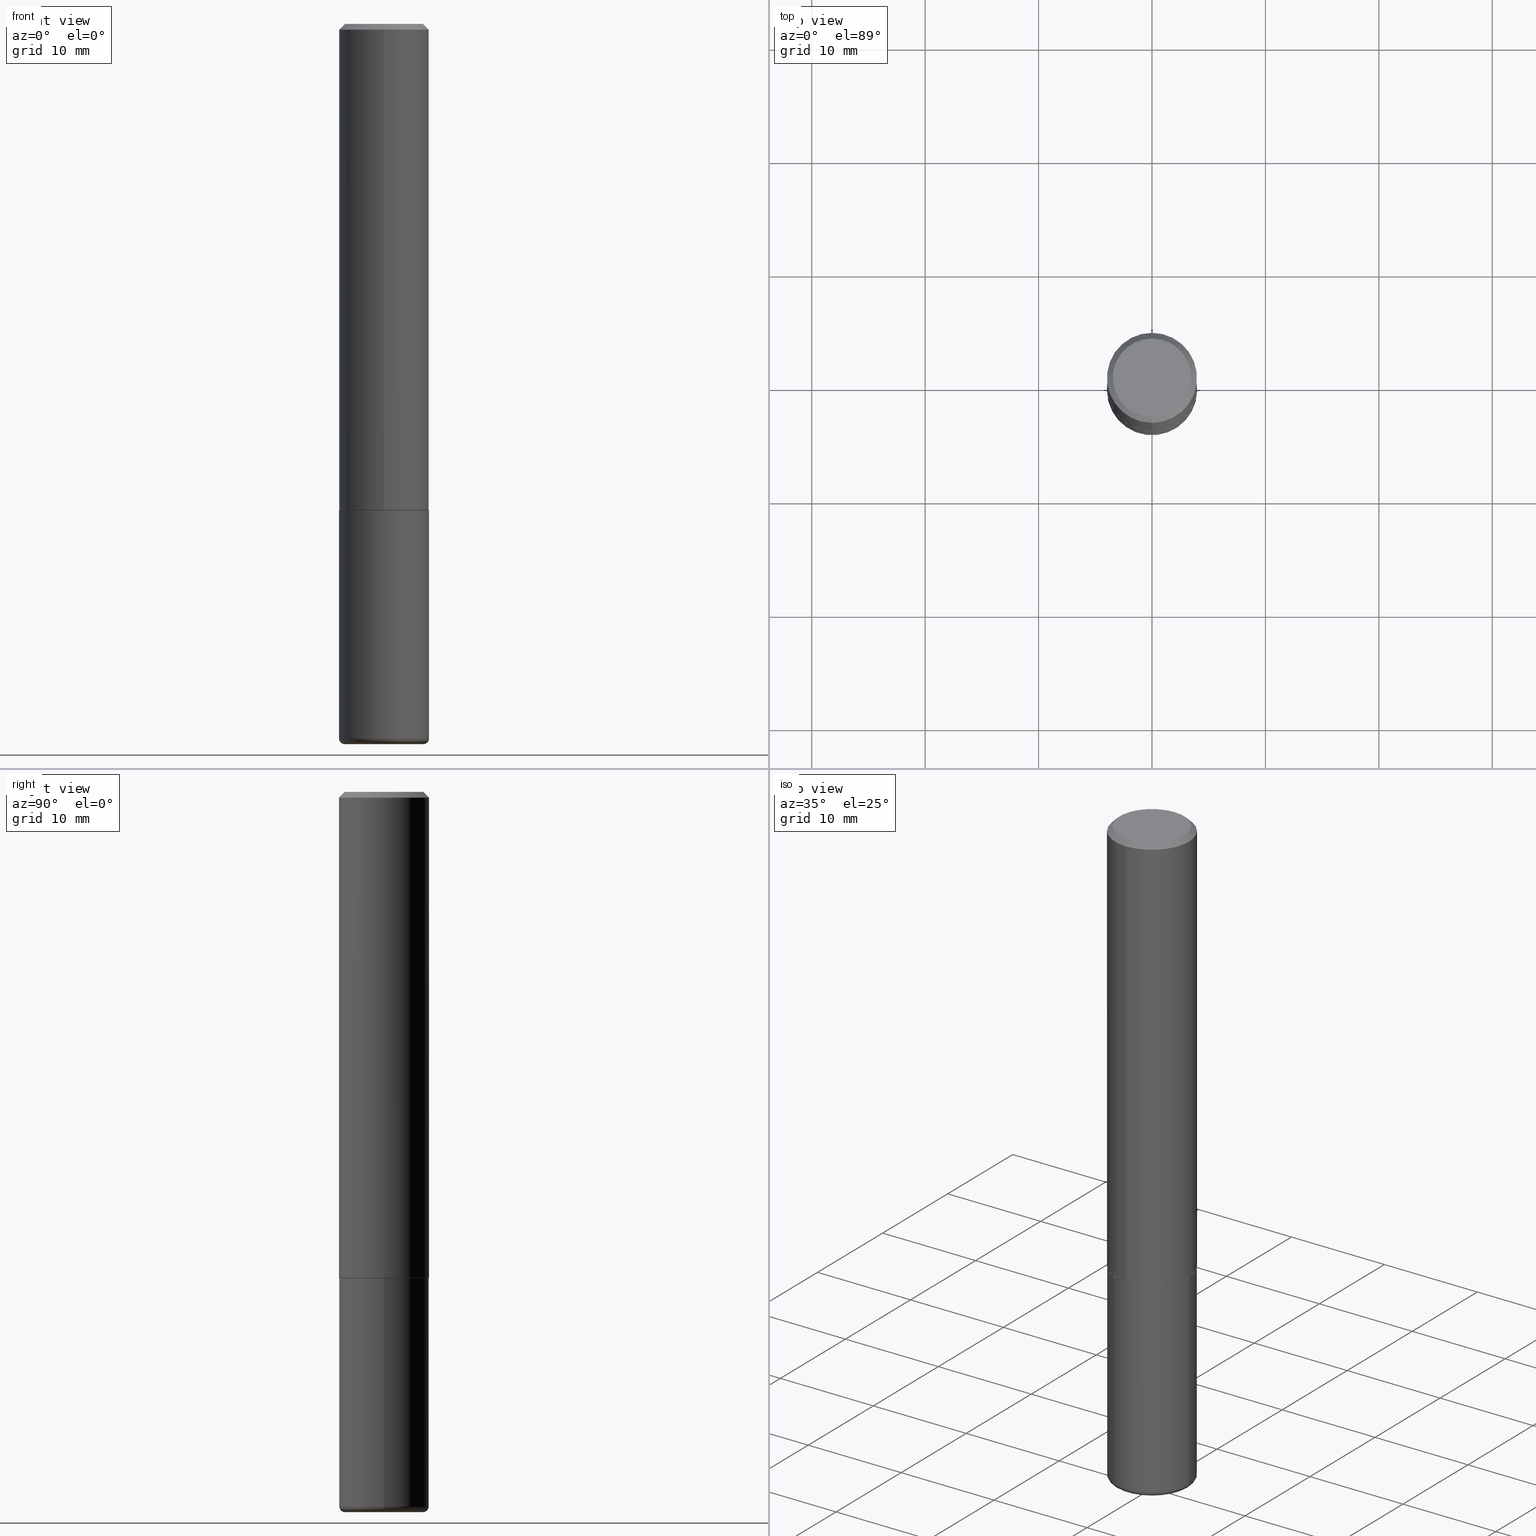
[diagram: canonical four-view strip — front | top / right | iso, engineering-drawing reading convention]
A machine part, canonical four-view strip (front | top / right | iso — engineering-drawing reading convention). The complete STEP part file that produces these views, byte-faithful:
ISO-10303-21;
HEADER;
FILE_DESCRIPTION (( 'STEP AP203' ),
    '1' );
FILE_NAME ('38233.STEP',
    '2024-03-02T19:05:54',
    ( '' ),
    ( '' ),
    'SwSTEP 2.0',
    'SolidWorks 2023',
    '' );
FILE_SCHEMA (( 'CONFIG_CONTROL_DESIGN' ));
ENDSEC;

DATA;
#1 = COORDINATED_UNIVERSAL_TIME_OFFSET ( 5, 0, .BEHIND. ) ;
#2 = CYLINDRICAL_SURFACE ( 'NONE', #387, 0.1562500000000000000 ) ;
#3 = AXIS2_PLACEMENT_3D ( 'NONE', #222, #48, #316 ) ;
#4 = CC_DESIGN_APPROVAL ( #73, ( #322 ) ) ;
#5 = DIRECTION ( 'NONE',  ( -2.445045230849958565E-29, 3.492087922831531704E-15, 1.000000000000000000 ) ) ;
#6 = CARTESIAN_POINT ( 'NONE',  ( 0.1362500000000000100, -9.610302385165756588E-15, -2.480000000000000426 ) ) ;
#7 = DIRECTION ( 'NONE',  ( -2.445045230849958565E-29, 3.492087922831531704E-15, 1.000000000000000000 ) ) ;
#8 = CARTESIAN_POINT ( 'NONE',  ( 6.113672015462842613E-29, -8.728703347107866520E-15, -2.500000000000000444 ) ) ;
#9 = EDGE_CURVE ( 'NONE', #134, #271, #179, .T. ) ;
#10 = ORIENTED_EDGE ( 'NONE', *, *, #324, .T. ) ;
#11 = FACE_OUTER_BOUND ( 'NONE', #309, .T. ) ;
#12 = ORIENTED_EDGE ( 'NONE', *, *, #202, .F. ) ;
#13 = VERTEX_POINT ( 'NONE', #372 ) ;
#14 = DIRECTION ( 'NONE',  ( 0.000000000000000000, 0.000000000000000000, 1.000000000000000000 ) ) ;
#15 = AXIS2_PLACEMENT_3D ( 'NONE', #317, #149, #204 ) ;
#16 = EDGE_LOOP ( 'NONE', ( #237, #170, #311, #230 ) ) ;
#17 = ORIENTED_EDGE ( 'NONE', *, *, #183, .T. ) ;
#18 = EDGE_LOOP ( 'NONE', ( #109, #334, #336, #207 ) ) ;
#19 = DATE_AND_TIME ( #210, #45 ) ;
#20 = EDGE_CURVE ( 'NONE', #134, #35, #273, .T. ) ;
#21 = PLANE ( 'NONE',  #390 ) ;
#22 = CIRCLE ( 'NONE', #358, 0.1562500000000000000 ) ;
#23 = PRODUCT_DEFINITION ( 'UNKNOWN', '', #65, #181 ) ;
#24 = DIRECTION ( 'NONE',  ( 2.438088387897960049E-29, -3.491481338843145188E-15, -1.000000000000000000 ) ) ;
#25 = DIRECTION ( 'NONE',  ( -2.445045230849958565E-29, 3.492087922831532098E-15, 1.000000000000000000 ) ) ;
#26 = AXIS2_PLACEMENT_3D ( 'NONE', #409, #118, #378 ) ;
#27 = AXIS2_PLACEMENT_3D ( 'NONE', #357, #14, #66 ) ;
#28 = DIRECTION ( 'NONE',  ( -6.982962677686265133E-15, -1.000000000000000000, 3.496765431890256920E-15 ) ) ;
#29 = EDGE_CURVE ( 'NONE', #376, #407, #41, .T. ) ;
#30 = AXIS2_PLACEMENT_3D ( 'NONE', #57, #294, #188 ) ;
#31 = PERSON_AND_ORGANIZATION ( #148, #369 ) ;
#32 = DIRECTION ( 'NONE',  ( -6.982962677686265922E-15, -1.000000000000000000, 3.519288880726909138E-15 ) ) ;
#33 = FACE_OUTER_BOUND ( 'NONE', #92, .T. ) ;
#34 = ORIENTED_EDGE ( 'NONE', *, *, #417, .T. ) ;
#35 = VERTEX_POINT ( 'NONE', #400 ) ;
#36 = CIRCLE ( 'NONE', #199, 0.1362500000000000933 ) ;
#37 = CARTESIAN_POINT ( 'NONE',  ( 4.127951344840510809E-29, -5.893620499967230340E-15, -1.688000000000000167 ) ) ;
#38 = DIRECTION ( 'NONE',  ( -6.982962677686265922E-15, -1.000000000000000000, 3.519288880726909138E-15 ) ) ;
#39 = ORIENTED_EDGE ( 'NONE', *, *, #293, .F. ) ;
#40 = ORIENTED_EDGE ( 'NONE', *, *, #346, .T. ) ;
#41 = LINE ( 'NONE', #142, #43 ) ;
#42 = ORIENTED_EDGE ( 'NONE', *, *, #217, .T. ) ;
#43 = VECTOR ( 'NONE', #277, 39.37007874015748143 ) ;
#44 = DIRECTION ( 'NONE',  ( 1.000000000000000000, -6.982962677686269077E-15, 0.000000000000000000 ) ) ;
#45 = LOCAL_TIME ( 14, 5, 54.00000000000000000, #159 ) ;
#46 = PERSON_AND_ORGANIZATION_ROLE ( 'classification_officer' ) ;
#47 = EDGE_CURVE ( 'NONE', #209, #268, #289, .T. ) ;
#48 = DIRECTION ( 'NONE',  ( -2.445468806185136597E-29, 3.491481338843145583E-15, 1.000000000000000000 ) ) ;
#49 = DIRECTION ( 'NONE',  ( -6.982962677686265922E-15, -1.000000000000000000, 3.496765431890251792E-15 ) ) ;
#50 = DIRECTION ( 'NONE',  ( -2.445045230849958565E-29, 3.492087922831531704E-15, 1.000000000000000000 ) ) ;
#51 = AXIS2_PLACEMENT_3D ( 'NONE', #276, #359, #302 ) ;
#52 = EDGE_CURVE ( 'NONE', #72, #53, #151, .T. ) ;
#53 = VERTEX_POINT ( 'NONE', #403 ) ;
#54 = COORDINATED_UNIVERSAL_TIME_OFFSET ( 5, 0, .BEHIND. ) ;
#55 = PRODUCT_RELATED_PRODUCT_CATEGORY ( 'detail', '', ( #93 ) ) ;
#56 = ORIENTED_EDGE ( 'NONE', *, *, #194, .F. ) ;
#57 = CARTESIAN_POINT ( 'NONE',  ( 6.064762639339139522E-29, -8.658873720331001644E-15, -2.480000000000000426 ) ) ;
#58 = AXIS2_PLACEMENT_3D ( 'NONE', #415, #5, #32 ) ;
#59 = CC_DESIGN_APPROVAL ( #220, ( #23 ) ) ;
#60 = CARTESIAN_POINT ( 'NONE',  ( 1.103117597267596553E-15, 0.1552499999999940872, -1.688000000000000611 ) ) ;
#61 = FACE_OUTER_BOUND ( 'NONE', #244, .T. ) ;
#62 = ADVANCED_FACE ( 'NONE', ( #215 ), #144, .F. ) ;
#63 = ADVANCED_FACE ( 'NONE', ( #178 ), #241, .T. ) ;
#64 = DIRECTION ( 'NONE',  ( 1.000000000000000000, -6.982962677686262766E-15, 0.000000000000000000 ) ) ;
#65 = PRODUCT_DEFINITION_FORMATION_WITH_SPECIFIED_SOURCE ( 'ANY', '', #93, .NOT_KNOWN. ) ;
#66 = DIRECTION ( 'NONE',  ( 1.000000000000000000, 0.000000000000000000, 0.000000000000000000 ) ) ;
#67 = MANIFOLD_SOLID_BREP ( 'Body-Move/Copy2[1]', #198 ) ;
#68 = DIRECTION ( 'NONE',  ( -6.982962677686265922E-15, -1.000000000000000000, 3.519288880726909138E-15 ) ) ;
#69 = ORIENTED_EDGE ( 'NONE', *, *, #381, .T. ) ;
#70 = ADVANCED_FACE ( 'NONE', ( #406 ), #274, .T. ) ;
#71 = CARTESIAN_POINT ( 'NONE',  ( 4.127236349674729842E-29, -5.894644413739625756E-15, -1.688000000000000167 ) ) ;
#72 = VERTEX_POINT ( 'NONE', #283 ) ;
#73 = APPROVAL ( #218, 'UNSPECIFIED' ) ;
#74 = DIRECTION ( 'NONE',  ( -2.445045230849958565E-29, 3.492087922831531704E-15, 1.000000000000000000 ) ) ;
#75 = ORIENTED_EDGE ( 'NONE', *, *, #194, .T. ) ;
#76 = CARTESIAN_POINT ( 'NONE',  ( 4.890090461699924977E-31, -6.984175845663074797E-17, -0.02000000000000003511 ) ) ;
#77 = ORIENTED_EDGE ( 'NONE', *, *, #412, .T. ) ;
#78 = DATE_TIME_ROLE ( 'creation_date' ) ;
#79 = EDGE_LOOP ( 'NONE', ( #39, #150 ) ) ;
#80 = MANIFOLD_SOLID_BREP ( 'Body-Move/Copy2[2]', #386 ) ;
#81 = ORIENTED_EDGE ( 'NONE', *, *, #384, .F. ) ;
#82 = PERSON_AND_ORGANIZATION ( #148, #369 ) ;
#83 = CIRCLE ( 'NONE', #321, 0.1362500000000000933 ) ;
#84 = DIRECTION ( 'NONE',  ( 2.445045230849958565E-29, -3.492087922831531704E-15, -1.000000000000000000 ) ) ;
#85 = MECHANICAL_CONTEXT ( 'NONE', #315, 'mechanical' ) ;
#86 = ADVANCED_FACE ( 'NONE', ( #184 ), #263, .T. ) ;
#87 = ORIENTED_EDGE ( 'NONE', *, *, #363, .F. ) ;
#88 = AXIS2_PLACEMENT_3D ( 'NONE', #243, #349, #49 ) ;
#89 = CARTESIAN_POINT ( 'NONE',  ( 1.021258291611616861E-15, 0.1362500000000000933, -5.269364822985837754E-16 ) ) ;
#90 = AXIS2_PLACEMENT_3D ( 'NONE', #231, #7, #38 ) ;
#91 = CARTESIAN_POINT ( 'NONE',  ( 1.106670310946397846E-15, 0.1552499999999940872, -1.688000000000000611 ) ) ;
#92 = EDGE_LOOP ( 'NONE', ( #264, #75, #40, #362 ) ) ;
#93 = PRODUCT ( '38233', '38233', '', ( #85 ) ) ;
#94 = DIRECTION ( 'NONE',  ( 2.438088387897960049E-29, -3.491481338843145188E-15, -1.000000000000000000 ) ) ;
#95 = AXIS2_PLACEMENT_3D ( 'NONE', #347, #50, #112 ) ;
#96 = CC_DESIGN_PERSON_AND_ORGANIZATION_ASSIGNMENT ( #275, #208, ( #93 ) ) ;
#97 = CARTESIAN_POINT ( 'NONE',  ( 6.064762639339139522E-29, -8.658873720331001644E-15, -2.480000000000000426 ) ) ;
#98 = APPLICATION_PROTOCOL_DEFINITION ( 'international standard', 'config_control_design', 1994, #166 ) ;
#99 = VECTOR ( 'NONE', #193, 39.37007874015748143 ) ;
#100 = CARTESIAN_POINT ( 'NONE',  ( -0.1362500000000000100, -7.690759242857866845E-15, -2.480000000000000426 ) ) ;
#101 = ORIENTED_EDGE ( 'NONE', *, *, #47, .T. ) ;
#102 = LINE ( 'NONE', #131, #125 ) ;
#103 = VERTEX_POINT ( 'NONE', #89 ) ;
#104 = ADVANCED_FACE ( 'NONE', ( #281 ), #21, .F. ) ;
#105 = CARTESIAN_POINT ( 'NONE',  ( 0.000000000000000000, 0.000000000000000000, 0.000000000000000000 ) ) ;
#106 = ORIENTED_EDGE ( 'NONE', *, *, #293, .T. ) ;
#107 = PERSON_AND_ORGANIZATION_ROLE ( 'creator' ) ;
#108 = DIRECTION ( 'NONE',  ( -6.982962677686265922E-15, -1.000000000000000000, 3.519288880726909138E-15 ) ) ;
#109 = ORIENTED_EDGE ( 'NONE', *, *, #393, .F. ) ;
#110 = APPROVAL_ROLE ( '' ) ;
#111 = CC_DESIGN_DATE_AND_TIME_ASSIGNMENT ( #254, #223, ( #322 ) ) ;
#112 = DIRECTION ( 'NONE',  ( -6.982962677686265922E-15, -1.000000000000000000, 3.492087922831532098E-15 ) ) ;
#113 = AXIS2_PLACEMENT_3D ( 'NONE', #157, #94, #320 ) ;
#114 = DIRECTION ( 'NONE',  ( 6.982962677686265133E-15, 1.000000000000000000, -3.496765431890256920E-15 ) ) ;
#115 = CALENDAR_DATE ( 2024, 2, 3 ) ;
#116 = CALENDAR_DATE ( 2024, 2, 3 ) ;
#117 = ORIENTED_EDGE ( 'NONE', *, *, #280, .F. ) ;
#118 = DIRECTION ( 'NONE',  ( -2.445045230849957724E-29, 3.492087922831532098E-15, 1.000000000000000000 ) ) ;
#119 = AXIS2_PLACEMENT_3D ( 'NONE', #260, #256, #28 ) ;
#120 = CC_DESIGN_APPROVAL ( #121, ( #65 ) ) ;
#121 = APPROVAL ( #401, 'UNSPECIFIED' ) ;
#122 = CARTESIAN_POINT ( 'NONE',  ( -0.1562500000000000000, 1.110223024625156540E-15, -7.685836078523291160E-30 ) ) ;
#123 = DIRECTION ( 'NONE',  ( -2.445045230849958565E-29, 3.492087922831531704E-15, 1.000000000000000000 ) ) ;
#124 = CARTESIAN_POINT ( 'NONE',  ( -1.084104955710751547E-15, -0.1552500000000059110, -1.687999999999999501 ) ) ;
#125 = VECTOR ( 'NONE', #262, 39.37007874015748143 ) ;
#126 =( GEOMETRIC_REPRESENTATION_CONTEXT ( 3 ) GLOBAL_UNCERTAINTY_ASSIGNED_CONTEXT ( ( #266 ) ) GLOBAL_UNIT_ASSIGNED_CONTEXT ( ( #312, #242, #327 ) ) REPRESENTATION_CONTEXT ( 'NONE', 'WORKASPACE' ) );
#127 = FACE_OUTER_BOUND ( 'NONE', #227, .T. ) ;
#128 = SECURITY_CLASSIFICATION_LEVEL ( 'unclassified' ) ;
#129 = DIRECTION ( 'NONE',  ( 2.445045230849958565E-29, -3.492087922831531704E-15, -1.000000000000000000 ) ) ;
#130 = CALENDAR_DATE ( 2024, 2, 3 ) ;
#131 = CARTESIAN_POINT ( 'NONE',  ( 0.1562500000000000000, -1.091087918388479174E-15, 7.619026212181150377E-30 ) ) ;
#132 = AXIS2_PLACEMENT_3D ( 'NONE', #248, #84, #114 ) ;
#133 = CARTESIAN_POINT ( 'NONE',  ( 4.127236349674729842E-29, -5.894644413739625756E-15, -1.688000000000000167 ) ) ;
#134 = VERTEX_POINT ( 'NONE', #174 ) ;
#135 = DIRECTION ( 'NONE',  ( -2.445468806185136597E-29, 3.491481338843145583E-15, 1.000000000000000000 ) ) ;
#136 = DIMENSIONAL_EXPONENTS ( 1.000000000000000000, 0.000000000000000000, 0.000000000000000000, 0.000000000000000000, 0.000000000000000000, 0.000000000000000000, 0.000000000000000000 ) ;
#137 = CARTESIAN_POINT ( 'NONE',  ( 1.110223024625157132E-15, 0.1562500000000001110, -5.456387379424272725E-16 ) ) ;
#138 = ORIENTED_EDGE ( 'NONE', *, *, #412, .F. ) ;
#139 = CC_DESIGN_PERSON_AND_ORGANIZATION_ASSIGNMENT ( #298, #374, ( #23 ) ) ;
#140 = AXIS2_PLACEMENT_3D ( 'NONE', #71, #74, #68 ) ;
#141 = DIRECTION ( 'NONE',  ( -6.982962677686265922E-15, -1.000000000000000000, 3.496765431890251792E-15 ) ) ;
#142 = CARTESIAN_POINT ( 'NONE',  ( -1.071952812151801215E-15, -0.1562500000000000833, -0.01999999999999948694 ) ) ;
#143 = ORIENTED_EDGE ( 'NONE', *, *, #20, .T. ) ;
#144 = PLANE ( 'NONE',  #295 ) ;
#145 = ORIENTED_EDGE ( 'NONE', *, *, #286, .T. ) ;
#146 = ADVANCED_FACE ( 'NONE', ( #212 ), #380, .F. ) ;
#147 = DIRECTION ( 'NONE',  ( 2.445045230849957724E-29, -3.492087922831532098E-15, -1.000000000000000000 ) ) ;
#148 = PERSON ( 'UNSPECIFIED', 'UNSPECIFIED', 'UNSPECIFIED', ('UNSPECIFIED'), ('UNSPECIFIED'), ('UNSPECIFIED') ) ;
#149 = DIRECTION ( 'NONE',  ( -2.445468806185136597E-29, 3.491481338843145583E-15, 1.000000000000000000 ) ) ;
#150 = ORIENTED_EDGE ( 'NONE', *, *, #381, .F. ) ;
#151 = CIRCLE ( 'NONE', #88, 0.1562500000000002220 ) ;
#152 = AXIS2_PLACEMENT_3D ( 'NONE', #100, #328, #338 ) ;
#153 = DIRECTION ( 'NONE',  ( -4.937700262164884886E-15, -0.7071067811865933139, 0.7071067811865017205 ) ) ;
#154 = AXIS2_PLACEMENT_3D ( 'NONE', #272, #398, #141 ) ;
#155 = LINE ( 'NONE', #60, #290 ) ;
#156 = ADVANCED_FACE ( 'NONE', ( #252 ), #332, .T. ) ;
#157 = CARTESIAN_POINT ( 'NONE',  ( -8.868390233884125479E-30, -1.875383359908681760E-14, -2.500000000000000000 ) ) ;
#158 = CARTESIAN_POINT ( 'NONE',  ( -1.091087918388479765E-15, -0.1562500000000001110, 5.456387379424272725E-16 ) ) ;
#159 = COORDINATED_UNIVERSAL_TIME_OFFSET ( 5, 0, .BEHIND. ) ;
#160 = DIRECTION ( 'NONE',  ( -2.445045230849958565E-29, 3.492087922831531704E-15, 1.000000000000000000 ) ) ;
#161 = DIRECTION ( 'NONE',  ( -2.445468806185136597E-29, 3.491481338843145583E-15, 1.000000000000000000 ) ) ;
#162 = CYLINDRICAL_SURFACE ( 'NONE', #51, 0.1562500000000000000 ) ;
#163 = ORIENTED_EDGE ( 'NONE', *, *, #384, .T. ) ;
#164 = CIRCLE ( 'NONE', #58, 0.1552499999999999991 ) ;
#165 = VERTEX_POINT ( 'NONE', #91 ) ;
#166 = APPLICATION_CONTEXT ( 'configuration controlled 3d designs of mechanical parts and assemblies' ) ;
#167 = LINE ( 'NONE', #236, #99 ) ;
#168 = ORIENTED_EDGE ( 'NONE', *, *, #9, .T. ) ;
#169 = CARTESIAN_POINT ( 'NONE',  ( -1.071952812151801215E-15, -0.1562500000000000833, -0.01999999999999948694 ) ) ;
#170 = ORIENTED_EDGE ( 'NONE', *, *, #29, .T. ) ;
#171 = FACE_OUTER_BOUND ( 'NONE', #366, .T. ) ;
#172 = EDGE_LOOP ( 'NONE', ( #375, #246 ) ) ;
#173 = VECTOR ( 'NONE', #25, 39.37007874015748143 ) ;
#174 = CARTESIAN_POINT ( 'NONE',  ( 0.1362500000000000100, -9.680132011942621464E-15, -2.500000000000000444 ) ) ;
#175 = APPLICATION_PROTOCOL_DEFINITION ( 'international standard', 'config_control_design', 1994, #315 ) ;
#176 = CC_DESIGN_PERSON_AND_ORGANIZATION_ASSIGNMENT ( #397, #107, ( #65 ) ) ;
#177 = ADVANCED_FACE ( 'NONE', ( #127 ), #185, .T. ) ;
#178 = FACE_OUTER_BOUND ( 'NONE', #18, .T. ) ;
#179 = CIRCLE ( 'NONE', #410, 0.02000000000000016348 ) ;
#180 = CIRCLE ( 'NONE', #119, 0.1562500000000000000 ) ;
#181 = DESIGN_CONTEXT ( 'detailed design', #166, 'design' ) ;
#182 = ORIENTED_EDGE ( 'NONE', *, *, #280, .T. ) ;
#183 = EDGE_CURVE ( 'NONE', #13, #209, #326, .T. ) ;
#184 = FACE_OUTER_BOUND ( 'NONE', #16, .T. ) ;
#185 = PLANE ( 'NONE',  #113 ) ;
#186 = EDGE_CURVE ( 'NONE', #376, #103, #83, .T. ) ;
#187 = CONICAL_SURFACE ( 'NONE', #219, 0.1562500000000000000, 0.7853981633974468357 ) ;
#188 = DIRECTION ( 'NONE',  ( 1.000000000000000000, -6.982962677686262766E-15, 0.000000000000000000 ) ) ;
#189 = APPROVAL_PERSON_ORGANIZATION ( #284, #73, #405 ) ;
#190 = DIRECTION ( 'NONE',  ( 5.024295867788404755E-15, 0.7071067811865981989, 0.7071067811864968355 ) ) ;
#191 = CARTESIAN_POINT ( 'NONE',  ( 1.250383974604437494E-45, -1.785836401521438243E-31, -5.113950281278734949E-17 ) ) ;
#192 = VECTOR ( 'NONE', #197, 39.37007874015748143 ) ;
#193 = DIRECTION ( 'NONE',  ( 4.937700262164540154E-15, 0.7071067811865440200, -0.7071067811865510144 ) ) ;
#194 = EDGE_CURVE ( 'NONE', #13, #271, #22, .T. ) ;
#195 = DIRECTION ( 'NONE',  ( -2.445468806185136597E-29, 3.491481338843145583E-15, 1.000000000000000000 ) ) ;
#196 = ORIENTED_EDGE ( 'NONE', *, *, #393, .T. ) ;
#197 = DIRECTION ( 'NONE',  ( -2.445045230849958565E-29, 3.492087922831532098E-15, 1.000000000000000000 ) ) ;
#198 = CLOSED_SHELL ( 'NONE', ( #330, #156, #104, #414, #70, #177 ) ) ;
#199 = AXIS2_PLACEMENT_3D ( 'NONE', #305, #331, #226 ) ;
#200 = LOCAL_TIME ( 14, 5, 54.00000000000000000, #1 ) ;
#201 = DIRECTION ( 'NONE',  ( -2.445045230849958565E-29, 3.492087922831531704E-15, 1.000000000000000000 ) ) ;
#202 = EDGE_CURVE ( 'NONE', #53, #407, #291, .T. ) ;
#203 = ORIENTED_EDGE ( 'NONE', *, *, #265, .F. ) ;
#204 = DIRECTION ( 'NONE',  ( 1.000000000000000000, -6.982962677686273021E-15, 0.000000000000000000 ) ) ;
#205 = LINE ( 'NONE', #137, #192 ) ;
#206 = ORIENTED_EDGE ( 'NONE', *, *, #346, .F. ) ;
#207 = ORIENTED_EDGE ( 'NONE', *, *, #286, .F. ) ;
#208 = PERSON_AND_ORGANIZATION_ROLE ( 'design_owner' ) ;
#209 = VERTEX_POINT ( 'NONE', #299 ) ;
#210 = CALENDAR_DATE ( 2024, 2, 3 ) ;
#211 = VECTOR ( 'NONE', #153, 39.37007874015748143 ) ;
#212 = FACE_OUTER_BOUND ( 'NONE', #79, .T. ) ;
#213 = VERTEX_POINT ( 'NONE', #355 ) ;
#214 = APPROVAL_STATUS ( 'not_yet_approved' ) ;
#215 = FACE_OUTER_BOUND ( 'NONE', #172, .T. ) ;
#216 = PRODUCT_DEFINITION_SHAPE ( 'NONE', 'NONE',  #23 ) ;
#217 = EDGE_CURVE ( 'NONE', #307, #53, #255, .T. ) ;
#218 = APPROVAL_STATUS ( 'not_yet_approved' ) ;
#219 = AXIS2_PLACEMENT_3D ( 'NONE', #418, #129, #351 ) ;
#220 = APPROVAL ( #214, 'UNSPECIFIED' ) ;
#221 = DIRECTION ( 'NONE',  ( -2.445468806185136597E-29, 3.491481338843145583E-15, 1.000000000000000000 ) ) ;
#222 = CARTESIAN_POINT ( 'NONE',  ( 6.064762639339139522E-29, -8.658873720331001644E-15, -2.480000000000000426 ) ) ;
#223 = DATE_TIME_ROLE ( 'classification_date' ) ;
#224 = AXIS2_PLACEMENT_3D ( 'NONE', #133, #160, #108 ) ;
#225 = DIRECTION ( 'NONE',  ( -6.982962677686265922E-15, -1.000000000000000000, 3.492087922831531704E-15 ) ) ;
#226 = DIRECTION ( 'NONE',  ( -6.982962677686265922E-15, -1.000000000000000000, 3.492087922831531704E-15 ) ) ;
#227 = EDGE_LOOP ( 'NONE', ( #340, #314 ) ) ;
#228 = CARTESIAN_POINT ( 'NONE',  ( -1.003347832174086278E-15, -0.1362500000000000933, 4.246574766730091504E-16 ) ) ;
#229 = ORIENTED_EDGE ( 'NONE', *, *, #335, .F. ) ;
#230 = ORIENTED_EDGE ( 'NONE', *, *, #324, .F. ) ;
#231 = CARTESIAN_POINT ( 'NONE',  ( 4.127236349674729842E-29, -5.894644413739625756E-15, -1.688000000000000167 ) ) ;
#232 = EDGE_LOOP ( 'NONE', ( #253, #17, #81, #206 ) ) ;
#233 = AXIS2_PLACEMENT_3D ( 'NONE', #342, #161, #44 ) ;
#234 = CIRCLE ( 'NONE', #15, 0.1362500000000000100 ) ;
#235 = PERSON_AND_ORGANIZATION_ROLE ( 'design_supplier' ) ;
#236 = CARTESIAN_POINT ( 'NONE',  ( 1.091087918388479568E-15, 0.1562499999999999445, -0.02000000000000057981 ) ) ;
#237 = ORIENTED_EDGE ( 'NONE', *, *, #186, .F. ) ;
#238 = APPROVAL_DATE_TIME ( #19, #220 ) ;
#239 = EDGE_LOOP ( 'NONE', ( #77, #196, #399, #12 ) ) ;
#240 = PERSON_AND_ORGANIZATION ( #148, #369 ) ;
#241 = CYLINDRICAL_SURFACE ( 'NONE', #95, 0.1562500000000001110 ) ;
#242 =( NAMED_UNIT ( * ) PLANE_ANGLE_UNIT ( ) SI_UNIT ( $, .RADIAN. ) );
#243 = CARTESIAN_POINT ( 'NONE',  ( 4.124791304443880664E-29, -5.891152325816794336E-15, -1.687000000000000055 ) ) ;
#244 = EDGE_LOOP ( 'NONE', ( #333, #87, #10, #145 ) ) ;
#245 = DATE_AND_TIME ( #115, #258 ) ;
#246 = ORIENTED_EDGE ( 'NONE', *, *, #186, .T. ) ;
#247 = ADVANCED_FACE ( 'NONE', ( #61 ), #187, .T. ) ;
#248 = CARTESIAN_POINT ( 'NONE',  ( 4.890090461699924977E-31, -6.984175845663074797E-17, -0.02000000000000003511 ) ) ;
#249 = ORIENTED_EDGE ( 'NONE', *, *, #217, .F. ) ;
#250 = CIRCLE ( 'NONE', #152, 0.02000000000000016348 ) ;
#251 = APPROVAL_PERSON_ORGANIZATION ( #345, #121, #300 ) ;
#252 = FACE_OUTER_BOUND ( 'NONE', #304, .T. ) ;
#253 = ORIENTED_EDGE ( 'NONE', *, *, #265, .T. ) ;
#254 = DATE_AND_TIME ( #116, #348 ) ;
#255 = LINE ( 'NONE', #124, #211 ) ;
#256 = DIRECTION ( 'NONE',  ( -2.445045230849958565E-29, 3.492087922831531704E-15, 1.000000000000000000 ) ) ;
#257 = CIRCLE ( 'NONE', #404, 0.1562500000000000000 ) ;
#258 = LOCAL_TIME ( 14, 5, 54.00000000000000000, #54 ) ;
#259 = COORDINATED_UNIVERSAL_TIME_OFFSET ( 5, 0, .BEHIND. ) ;
#260 = CARTESIAN_POINT ( 'NONE',  ( 4.890090461699924977E-31, -6.984175845663074797E-17, -0.02000000000000003511 ) ) ;
#261 = DATE_AND_TIME ( #130, #200 ) ;
#262 = DIRECTION ( 'NONE',  ( -2.445468806185136877E-29, 3.491481338843145188E-15, 1.000000000000000000 ) ) ;
#263 = CONICAL_SURFACE ( 'NONE', #132, 0.1562500000000000000, 0.7853981633974468357 ) ;
#264 = ORIENTED_EDGE ( 'NONE', *, *, #183, .F. ) ;
#265 = EDGE_CURVE ( 'NONE', #271, #13, #352, .T. ) ;
#266 = UNCERTAINTY_MEASURE_WITH_UNIT (LENGTH_MEASURE( 1.000000000000000082E-05 ), #312, 'distance_accuracy_value', 'NONE');
#267 = CARTESIAN_POINT ( 'NONE',  ( -1.084104955710751547E-15, -0.1552500000000059110, -1.687999999999999501 ) ) ;
#268 = VERTEX_POINT ( 'NONE', #292 ) ;
#269 = ORIENTED_EDGE ( 'NONE', *, *, #52, .F. ) ;
#270 = CARTESIAN_POINT ( 'NONE',  ( 0.000000000000000000, 0.000000000000000000, 0.000000000000000000 ) ) ;
#271 = VERTEX_POINT ( 'NONE', #413 ) ;
#272 = CARTESIAN_POINT ( 'NONE',  ( 4.124791304443880664E-29, -5.891152325816794336E-15, -1.687000000000000055 ) ) ;
#273 = CIRCLE ( 'NONE', #416, 0.1362500000000000100 ) ;
#274 = TOROIDAL_SURFACE ( 'NONE', #285, 0.1362500000000000100, 0.02000000000000016348 ) ;
#275 = PERSON_AND_ORGANIZATION ( #148, #369 ) ;
#276 = CARTESIAN_POINT ( 'NONE',  ( 0.000000000000000000, 0.000000000000000000, 0.000000000000000000 ) ) ;
#277 = DIRECTION ( 'NONE',  ( -4.851104656540956386E-15, -0.7071067811865489050, -0.7071067811865461294 ) ) ;
#278 = ORIENTED_EDGE ( 'NONE', *, *, #335, .T. ) ;
#279 = COORDINATED_UNIVERSAL_TIME_OFFSET ( 5, 0, .BEHIND. ) ;
#280 = EDGE_CURVE ( 'NONE', #165, #72, #155, .T. ) ;
#281 = FACE_OUTER_BOUND ( 'NONE', #373, .T. ) ;
#282 = DATE_AND_TIME ( #377, #388 ) ;
#283 = CARTESIAN_POINT ( 'NONE',  ( 1.110223024625178234E-15, 0.1562499999999943101, -1.687000000000000499 ) ) ;
#284 = PERSON_AND_ORGANIZATION ( #148, #369 ) ;
#285 = AXIS2_PLACEMENT_3D ( 'NONE', #402, #221, #313 ) ;
#286 = EDGE_CURVE ( 'NONE', #213, #407, #180, .T. ) ;
#287 = APPROVAL_DATE_TIME ( #245, #73 ) ;
#288 = DIRECTION ( 'NONE',  ( -1.000000000000000000, 6.982962677686265922E-15, -4.876176775795935793E-29 ) ) ;
#289 = CIRCLE ( 'NONE', #233, 0.1562500000000000000 ) ;
#290 = VECTOR ( 'NONE', #190, 39.37007874015748143 ) ;
#291 = LINE ( 'NONE', #158, #173 ) ;
#292 = CARTESIAN_POINT ( 'NONE',  ( 0.1562500000000000000, -6.984708418355709513E-15, -1.688000000000000167 ) ) ;
#293 = EDGE_CURVE ( 'NONE', #307, #165, #164, .T. ) ;
#294 = DIRECTION ( 'NONE',  ( -2.445468806185136597E-29, 3.491481338843145583E-15, 1.000000000000000000 ) ) ;
#295 = AXIS2_PLACEMENT_3D ( 'NONE', #383, #147, #382 ) ;
#296 = VECTOR ( 'NONE', #353, 39.37007874015748143 ) ;
#297 = APPROVAL_PERSON_ORGANIZATION ( #31, #220, #110 ) ;
#298 = PERSON_AND_ORGANIZATION ( #148, #369 ) ;
#299 = CARTESIAN_POINT ( 'NONE',  ( -0.1562500000000000000, -6.166024085523959846E-15, -1.688000000000000167 ) ) ;
#300 = APPROVAL_ROLE ( '' ) ;
#301 = DIRECTION ( 'NONE',  ( 1.000000000000000000, -6.982962677686266711E-15, 4.876176775795936353E-29 ) ) ;
#302 = DIRECTION ( 'NONE',  ( 1.000000000000000000, -6.982962677686266711E-15, 4.876176775795936353E-29 ) ) ;
#303 = CC_DESIGN_SECURITY_CLASSIFICATION ( #322, ( #65 ) ) ;
#304 = EDGE_LOOP ( 'NONE', ( #143, #278, #203, #395 ) ) ;
#305 = CARTESIAN_POINT ( 'NONE',  ( 1.250383974604437494E-45, -1.785836401521438243E-31, -5.113950281278734949E-17 ) ) ;
#306 = CC_DESIGN_PERSON_AND_ORGANIZATION_ASSIGNMENT ( #240, #235, ( #65 ) ) ;
#307 = VERTEX_POINT ( 'NONE', #267 ) ;
#308 = DIRECTION ( 'NONE',  ( -2.445045230849958565E-29, 3.492087922831531704E-15, 1.000000000000000000 ) ) ;
#309 = EDGE_LOOP ( 'NONE', ( #117, #69, #42, #269 ) ) ;
#310 = DIRECTION ( 'NONE',  ( 1.000000000000000000, -6.982962677686273021E-15, 0.000000000000000000 ) ) ;
#311 = ORIENTED_EDGE ( 'NONE', *, *, #354, .T. ) ;
#312 =( CONVERSION_BASED_UNIT ( 'INCH', #337 ) LENGTH_UNIT ( ) NAMED_UNIT ( #136 ) );
#313 = DIRECTION ( 'NONE',  ( 1.000000000000000000, -6.982962677686267499E-15, 4.883557194083113462E-29 ) ) ;
#314 = ORIENTED_EDGE ( 'NONE', *, *, #417, .F. ) ;
#315 = APPLICATION_CONTEXT ( 'configuration controlled 3d designs of mechanical parts and assemblies' ) ;
#316 = DIRECTION ( 'NONE',  ( 1.000000000000000000, -6.982962677686267499E-15, 4.883557194083113462E-29 ) ) ;
#317 = CARTESIAN_POINT ( 'NONE',  ( 6.113672015462842613E-29, -8.728703347107866520E-15, -2.500000000000000444 ) ) ;
#318 = AXIS2_PLACEMENT_3D ( 'NONE', #105, #308, #360 ) ;
#319 = CARTESIAN_POINT ( 'NONE',  ( 4.127951344840510809E-29, -5.893620499967230340E-15, -1.688000000000000167 ) ) ;
#320 = DIRECTION ( 'NONE',  ( -1.000000000000000000, 6.982962677686265922E-15, -4.876176775795935793E-29 ) ) ;
#321 = AXIS2_PLACEMENT_3D ( 'NONE', #191, #123, #225 ) ;
#322 = SECURITY_CLASSIFICATION ( '', '', #128 ) ;
#323 = ADVANCED_BREP_SHAPE_REPRESENTATION ( '38233', ( #67, #80, #27 ), #126 ) ;
#324 = EDGE_CURVE ( 'NONE', #103, #213, #167, .T. ) ;
#325 = AXIS2_PLACEMENT_3D ( 'NONE', #37, #195, #329 ) ;
#326 = LINE ( 'NONE', #122, #296 ) ;
#327 =( NAMED_UNIT ( * ) SI_UNIT ( $, .STERADIAN. ) SOLID_ANGLE_UNIT ( ) );
#328 = DIRECTION ( 'NONE',  ( 7.105427357601001859E-15, 1.000000000000000000, -3.491481338843145583E-15 ) ) ;
#329 = DIRECTION ( 'NONE',  ( 1.000000000000000000, -6.982962677686269077E-15, 0.000000000000000000 ) ) ;
#330 = ADVANCED_FACE ( 'NONE', ( #364 ), #2, .T. ) ;
#331 = DIRECTION ( 'NONE',  ( -2.445045230849958565E-29, 3.492087922831531704E-15, 1.000000000000000000 ) ) ;
#332 = TOROIDAL_SURFACE ( 'NONE', #3, 0.1362500000000000100, 0.02000000000000016348 ) ;
#333 = ORIENTED_EDGE ( 'NONE', *, *, #29, .F. ) ;
#334 = ORIENTED_EDGE ( 'NONE', *, *, #52, .T. ) ;
#335 = EDGE_CURVE ( 'NONE', #35, #13, #250, .T. ) ;
#336 = ORIENTED_EDGE ( 'NONE', *, *, #202, .T. ) ;
#337 = LENGTH_MEASURE_WITH_UNIT ( LENGTH_MEASURE( 0.02539999999999999897 ), #379 );
#338 = DIRECTION ( 'NONE',  ( -1.000000000000000000, 7.105427357601014480E-15, 0.000000000000000000 ) ) ;
#339 = DIRECTION ( 'NONE',  ( 1.000000000000000000, -6.982962677686275388E-15, 0.000000000000000000 ) ) ;
#340 = ORIENTED_EDGE ( 'NONE', *, *, #20, .F. ) ;
#341 = APPROVAL_DATE_TIME ( #261, #121 ) ;
#342 = CARTESIAN_POINT ( 'NONE',  ( 4.127951344840510809E-29, -5.893620499967230340E-15, -1.688000000000000167 ) ) ;
#343 = CIRCLE ( 'NONE', #154, 0.1562500000000002220 ) ;
#344 = ADVANCED_FACE ( 'NONE', ( #171 ), #385, .T. ) ;
#345 = PERSON_AND_ORGANIZATION ( #148, #369 ) ;
#346 = EDGE_CURVE ( 'NONE', #271, #268, #102, .T. ) ;
#347 = CARTESIAN_POINT ( 'NONE',  ( 0.000000000000000000, 0.000000000000000000, 0.000000000000000000 ) ) ;
#348 = LOCAL_TIME ( 14, 5, 54.00000000000000000, #259 ) ;
#349 = DIRECTION ( 'NONE',  ( -2.445045230849958565E-29, 3.492087922831531704E-15, 1.000000000000000000 ) ) ;
#350 = SHAPE_DEFINITION_REPRESENTATION ( #216, #323 ) ;
#351 = DIRECTION ( 'NONE',  ( 6.982962677686265133E-15, 1.000000000000000000, -3.496765431890256920E-15 ) ) ;
#352 = CIRCLE ( 'NONE', #30, 0.1562500000000000000 ) ;
#353 = DIRECTION ( 'NONE',  ( -2.445468806185136877E-29, 3.491481338843145188E-15, 1.000000000000000000 ) ) ;
#354 = EDGE_CURVE ( 'NONE', #407, #213, #257, .T. ) ;
#355 = CARTESIAN_POINT ( 'NONE',  ( 1.091087918388479568E-15, 0.1562499999999999445, -0.02000000000000057981 ) ) ;
#356 = DIRECTION ( 'NONE',  ( -2.445468806185136597E-29, 3.491481338843145583E-15, 1.000000000000000000 ) ) ;
#357 = CARTESIAN_POINT ( 'NONE',  ( 0.000000000000000000, 0.000000000000000000, 0.000000000000000000 ) ) ;
#358 = AXIS2_PLACEMENT_3D ( 'NONE', #97, #356, #64 ) ;
#359 = DIRECTION ( 'NONE',  ( -2.445468806185136597E-29, 3.491481338843145583E-15, 1.000000000000000000 ) ) ;
#360 = DIRECTION ( 'NONE',  ( -6.982962677686265922E-15, -1.000000000000000000, 3.492087922831532098E-15 ) ) ;
#361 = CC_DESIGN_PERSON_AND_ORGANIZATION_ASSIGNMENT ( #82, #46, ( #322 ) ) ;
#362 = ORIENTED_EDGE ( 'NONE', *, *, #47, .F. ) ;
#363 = EDGE_CURVE ( 'NONE', #103, #376, #36, .T. ) ;
#364 = FACE_OUTER_BOUND ( 'NONE', #232, .T. ) ;
#365 = DIRECTION ( 'NONE',  ( -6.982962677686266711E-15, -1.000000000000000000, 3.491481338843145583E-15 ) ) ;
#366 = EDGE_LOOP ( 'NONE', ( #106, #182, #138, #249 ) ) ;
#367 = CIRCLE ( 'NONE', #325, 0.1562500000000000000 ) ;
#368 = DIRECTION ( 'NONE',  ( -2.445468806185136597E-29, 3.491481338843145583E-15, 1.000000000000000000 ) ) ;
#369 = ORGANIZATION ( 'UNSPECIFIED', 'UNSPECIFIED', '' ) ;
#370 = EDGE_LOOP ( 'NONE', ( #229, #34, #168, #56 ) ) ;
#371 = ADVANCED_FACE ( 'NONE', ( #392 ), #396, .T. ) ;
#372 = CARTESIAN_POINT ( 'NONE',  ( -0.1562500000000000833, -7.548650695705845104E-15, -2.480000000000000426 ) ) ;
#373 = EDGE_LOOP ( 'NONE', ( #163, #101 ) ) ;
#374 = PERSON_AND_ORGANIZATION_ROLE ( 'creator' ) ;
#375 = ORIENTED_EDGE ( 'NONE', *, *, #363, .T. ) ;
#376 = VERTEX_POINT ( 'NONE', #228 ) ;
#377 = CALENDAR_DATE ( 2024, 2, 3 ) ;
#378 = DIRECTION ( 'NONE',  ( -6.982962677686265922E-15, -1.000000000000000000, 3.492087922831532098E-15 ) ) ;
#379 =( LENGTH_UNIT ( ) NAMED_UNIT ( * ) SI_UNIT ( $, .METRE. ) );
#380 = PLANE ( 'NONE',  #26 ) ;
#381 = EDGE_CURVE ( 'NONE', #165, #307, #411, .T. ) ;
#382 = DIRECTION ( 'NONE',  ( 6.982962677686265922E-15, 1.000000000000000000, -3.492087922831532098E-15 ) ) ;
#383 = CARTESIAN_POINT ( 'NONE',  ( 9.514286648347543521E-16, 0.1362500000000000933, -5.013667308921901438E-16 ) ) ;
#384 = EDGE_CURVE ( 'NONE', #268, #209, #367, .T. ) ;
#385 = CONICAL_SURFACE ( 'NONE', #224, 0.1552499999999999991, 0.7853981633975165577 ) ;
#386 = CLOSED_SHELL ( 'NONE', ( #344, #371, #86, #247, #63, #389, #146, #62 ) ) ;
#387 = AXIS2_PLACEMENT_3D ( 'NONE', #270, #135, #301 ) ;
#388 = LOCAL_TIME ( 14, 5, 54.00000000000000000, #279 ) ;
#389 = ADVANCED_FACE ( 'NONE', ( #11 ), #391, .T. ) ;
#390 = AXIS2_PLACEMENT_3D ( 'NONE', #319, #24, #288 ) ;
#391 = CONICAL_SURFACE ( 'NONE', #140, 0.1552499999999999991, 0.7853981633975165577 ) ;
#392 = FACE_OUTER_BOUND ( 'NONE', #239, .T. ) ;
#393 = EDGE_CURVE ( 'NONE', #72, #213, #205, .T. ) ;
#394 = DIRECTION ( 'NONE',  ( -6.982962677686265133E-15, -1.000000000000000000, 3.496765431890256920E-15 ) ) ;
#395 = ORIENTED_EDGE ( 'NONE', *, *, #9, .F. ) ;
#396 = CYLINDRICAL_SURFACE ( 'NONE', #318, 0.1562500000000001110 ) ;
#397 = PERSON_AND_ORGANIZATION ( #148, #369 ) ;
#398 = DIRECTION ( 'NONE',  ( -2.445045230849958565E-29, 3.492087922831531704E-15, 1.000000000000000000 ) ) ;
#399 = ORIENTED_EDGE ( 'NONE', *, *, #354, .F. ) ;
#400 = CARTESIAN_POINT ( 'NONE',  ( -0.1362500000000000100, -7.654619782670286835E-15, -2.500000000000000444 ) ) ;
#401 = APPROVAL_STATUS ( 'not_yet_approved' ) ;
#402 = CARTESIAN_POINT ( 'NONE',  ( 6.064762639339139522E-29, -8.658873720331001644E-15, -2.480000000000000426 ) ) ;
#403 = CARTESIAN_POINT ( 'NONE',  ( -1.091087918388439336E-15, -0.1562500000000061062, -1.686999999999999611 ) ) ;
#404 = AXIS2_PLACEMENT_3D ( 'NONE', #76, #201, #394 ) ;
#405 = APPROVAL_ROLE ( '' ) ;
#406 = FACE_OUTER_BOUND ( 'NONE', #370, .T. ) ;
#407 = VERTEX_POINT ( 'NONE', #169 ) ;
#408 = CC_DESIGN_DATE_AND_TIME_ASSIGNMENT ( #282, #78, ( #23 ) ) ;
#409 = CARTESIAN_POINT ( 'NONE',  ( 4.127236349674729842E-29, -5.894644413739625756E-15, -1.688000000000000167 ) ) ;
#410 = AXIS2_PLACEMENT_3D ( 'NONE', #6, #365, #339 ) ;
#411 = CIRCLE ( 'NONE', #90, 0.1552499999999999991 ) ;
#412 = EDGE_CURVE ( 'NONE', #53, #72, #343, .T. ) ;
#413 = CARTESIAN_POINT ( 'NONE',  ( 0.1562500000000000833, -9.749961638719480029E-15, -2.480000000000000426 ) ) ;
#414 = ADVANCED_FACE ( 'NONE', ( #33 ), #162, .T. ) ;
#415 = CARTESIAN_POINT ( 'NONE',  ( 4.127236349674729842E-29, -5.894644413739625756E-15, -1.688000000000000167 ) ) ;
#416 = AXIS2_PLACEMENT_3D ( 'NONE', #8, #368, #310 ) ;
#417 = EDGE_CURVE ( 'NONE', #35, #134, #234, .T. ) ;
#418 = CARTESIAN_POINT ( 'NONE',  ( 4.890090461699924977E-31, -6.984175845663074797E-17, -0.02000000000000003511 ) ) ;
ENDSEC;
END-ISO-10303-21;
